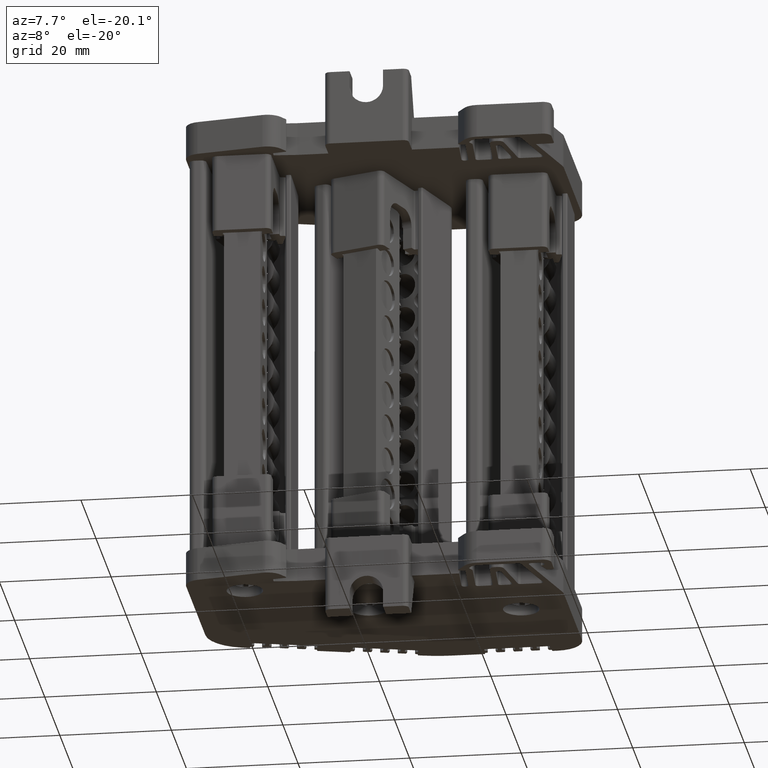
[diagram: clean part render]
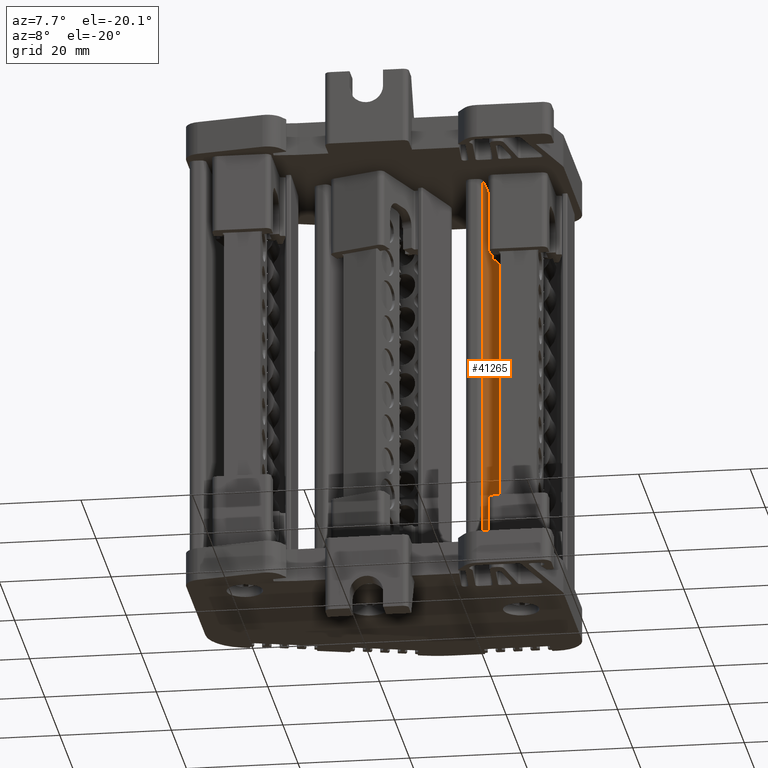
[diagram: same view with one face highlighted and labeled with its STEP entity id]
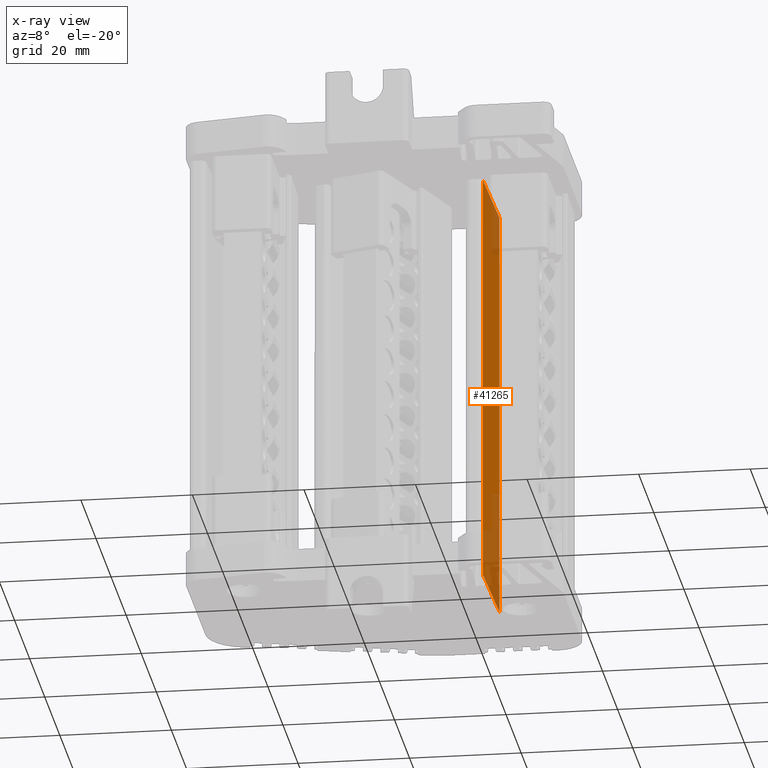
[diagram: x-ray of the same camera — body ghosted, the highlighted face saturated]
A machine part, auxiliary view. The second image highlights one B-rep face of the part: STEP entity #41265.
The next image is the same camera in x-ray: the body ghosted, the highlighted face saturated — about 26% of this face is hidden behind the body in this view.
In plain terms, the highlighted planar face has unit normal (0.9998, -0.0175, 0).
Its self-contained STEP definition (entity closure, byte-faithful):
#5916 = VECTOR ( 'NONE', #15227, 1000.000000000000100 ) ;
#8432 = EDGE_LOOP ( 'NONE', ( #47290, #96446, #47570, #47306 ) ) ;
#13929 = VECTOR ( 'NONE', #16746, 1000.000000000000000 ) ;
#13972 = VECTOR ( 'NONE', #16574, 1000.000000000000100 ) ;
#15224 = CARTESIAN_POINT ( 'NONE',  ( -280.0487024478774700, 209.9351160240199800, 100.3119239351455100 ) ) ;
#15227 = DIRECTION ( 'NONE',  ( -0.01745240644061269900, -0.9998476951563330900, -0.0000000000000000000 ) ) ;
#15341 = LINE ( 'NONE', #15224, #5916 ) ;
#16571 = LINE ( 'NONE', #16573, #13972 ) ;
#16573 = CARTESIAN_POINT ( 'NONE',  ( -280.0487024478770200, 209.9351160240199800, 25.71293318655224200 ) ) ;
#16574 = DIRECTION ( 'NONE',  ( 0.01745240644061269900, 0.9998476951563330900, 0.0000000000000000000 ) ) ;
#16665 = LINE ( 'NONE', #16667, #13929 ) ;
#16667 = CARTESIAN_POINT ( 'NONE',  ( -279.7148969017044400, 229.0588229527343500, 45.15242454076319200 ) ) ;
#16746 = DIRECTION ( 'NONE',  ( -6.982962677686750300E-015, -1.604252062634165100E-014, 1.000000000000000000 ) ) ;
#29103 = AXIS2_PLACEMENT_3D ( 'NONE', #34253, #34208, #34238 ) ;
#33918 = VECTOR ( 'NONE', #34788, 1000.000000000000000 ) ;
#34202 = PLANE ( 'NONE',  #29103 ) ;
#34208 = DIRECTION ( 'NONE',  ( 0.9998476951563332000, -0.01745240644061270300, 6.701918548344970700E-015 ) ) ;
#34238 = DIRECTION ( 'NONE',  ( 0.01745240644061269900, 0.9998476951563330900, 0.0000000000000000000 ) ) ;
#34251 = FACE_OUTER_BOUND ( 'NONE', #8432, .T. ) ;
#34253 = CARTESIAN_POINT ( 'NONE',  ( -280.0487024478771300, 209.9351160240199800, 45.15242454076320700 ) ) ;
#34767 = LINE ( 'NONE', #34774, #33918 ) ;
#34774 = CARTESIAN_POINT ( 'NONE',  ( -280.0525719823158400, 209.7134305445387100, 45.15242454076320700 ) ) ;
#34788 = DIRECTION ( 'NONE',  ( 6.700897813688197000E-015, -1.169646064375975000E-016, -1.000000000000000000 ) ) ;
#40187 = EDGE_CURVE ( 'NONE', #64628, #64426, #15341, .T. ) ;
#40445 = EDGE_CURVE ( 'NONE', #64356, #64781, #16571, .T. ) ;
#40460 = EDGE_CURVE ( 'NONE', #64781, #64628, #16665, .T. ) ;
#41265 = ADVANCED_FACE ( 'NONE', ( #34251 ), #34202, .T. ) ;
#47290 = ORIENTED_EDGE ( 'NONE', *, *, #40187, .T. ) ;
#47306 = ORIENTED_EDGE ( 'NONE', *, *, #40460, .T. ) ;
#47570 = ORIENTED_EDGE ( 'NONE', *, *, #40445, .T. ) ;
#64356 = VERTEX_POINT ( 'NONE', #110345 ) ;
#64426 = VERTEX_POINT ( 'NONE', #110406 ) ;
#64628 = VERTEX_POINT ( 'NONE', #110548 ) ;
#64781 = VERTEX_POINT ( 'NONE', #110664 ) ;
#96446 = ORIENTED_EDGE ( 'NONE', *, *, #102649, .T. ) ;
#102649 = EDGE_CURVE ( 'NONE', #64426, #64356, #34767, .T. ) ;
#110345 = CARTESIAN_POINT ( 'NONE',  ( -280.0525719823157800, 209.7134305445380000, 25.71293318655225600 ) ) ;
#110406 = CARTESIAN_POINT ( 'NONE',  ( -280.0525719823162400, 209.7134305445376600, 100.3119239351455700 ) ) ;
#110548 = CARTESIAN_POINT ( 'NONE',  ( -279.7148969017048900, 229.0588229527342600, 100.3119239351454900 ) ) ;
#110664 = CARTESIAN_POINT ( 'NONE',  ( -279.7148969017043800, 229.0588229527352300, 25.71293318655260100 ) ) ;